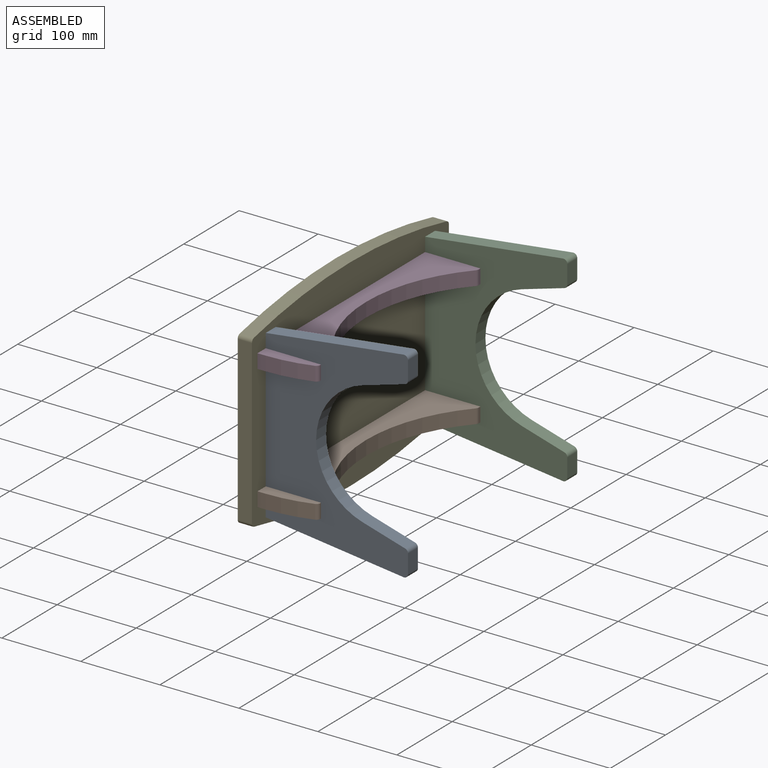
[diagram: assembled view]
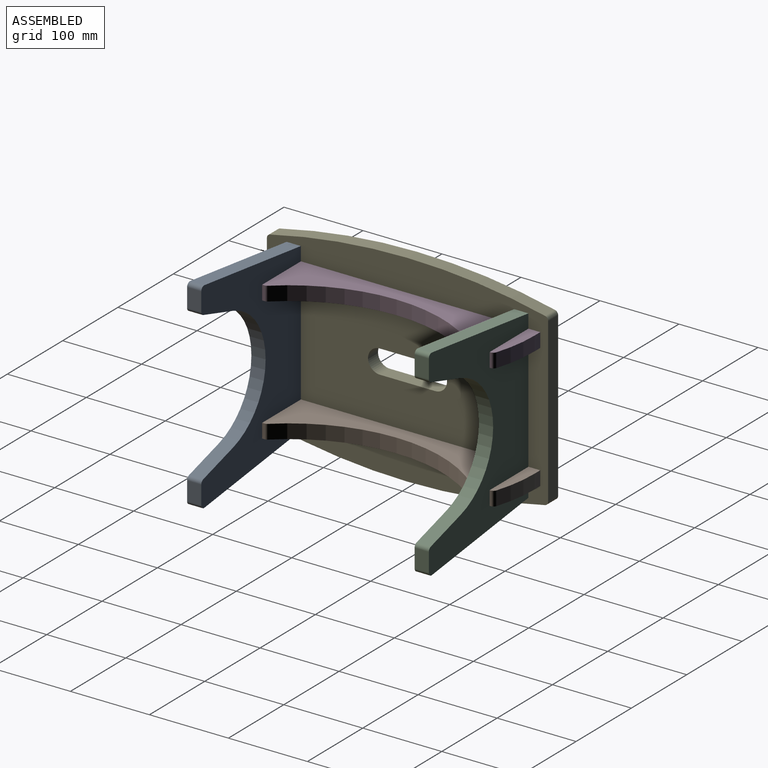
[diagram: assembled view, second angle]
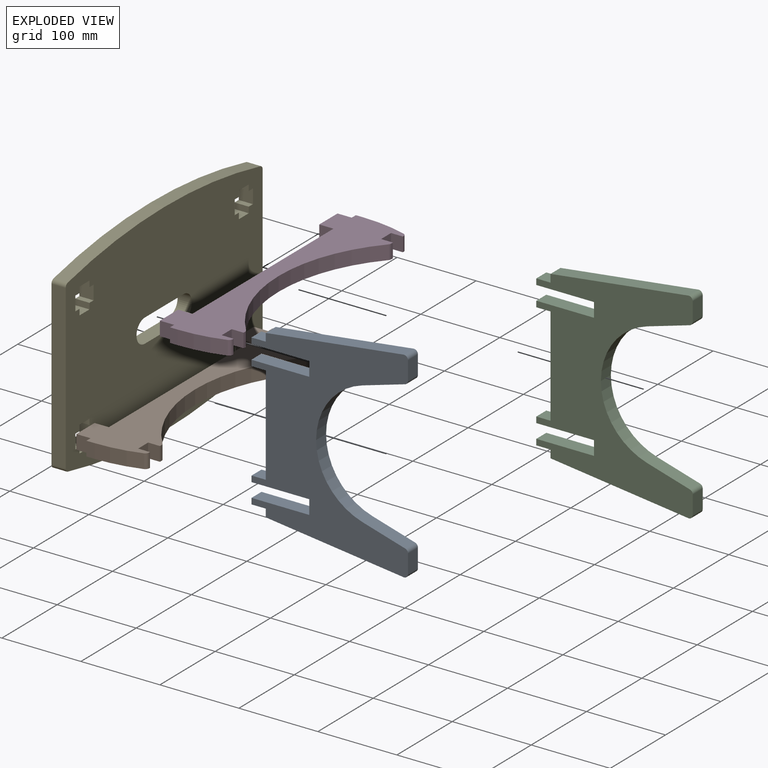
[diagram: exploded view]
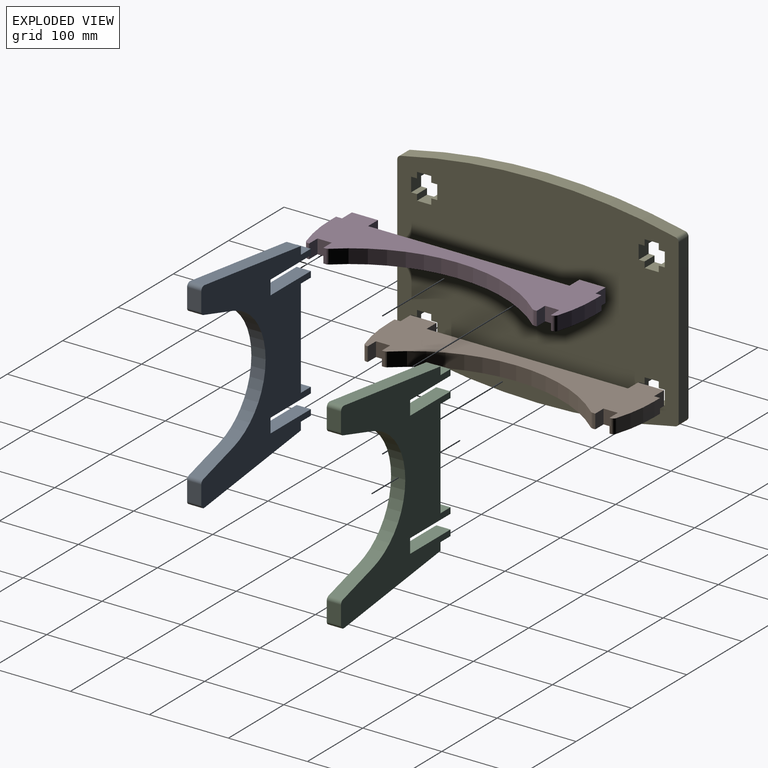
[diagram: exploded view, second angle]
ASSEMBLY  parts=5 mates=4
PART A: 30 faces, bbox 198x18x254.7 mm
  f0: plane 73x18mm, normal (0,0,-1), area 1314mm2, adj f1,f27,f28,f29
  f1: plane 18x7.5mm, normal (1,0,0), area 135mm2, adj f0,f2,f28,f29
  f2: plane 18x18mm, normal (0,0,1), area 324mm2, adj f1,f3,f28,f29
  f3: plane 18x10mm, normal (1,0,0), area 180mm2, adj f2,f4,f28,f29
  f4: plane 174.38x21.8mm, normal (0.12,0,0.99), area 3163.3mm2, adj f3,f5,f28,f29
  f5: cylinder r=5mm len=18mm, axis (0,1,0), area 152.6mm2, adj f4,f6,f28,f29
  f6: plane 23.59x18mm, normal (-1,0,0), area 424.5mm2, adj f5,f7,f28,f29
  f7: cylinder r=5mm len=18mm, axis (0,1,0), area 115.8mm2, adj f6,f8,f28,f29
  f8: plane 54x18mm, normal (-0.28,0,-0.96), area 1012.5mm2, adj f7,f9,f28,f29
  f9: cylinder r=81.46mm len=156.4mm, axis (0,1,0), area 3774.1mm2, adj f8,f10,f28,f29
  f10: plane 54x18mm, normal (-0.28,0,0.96), area 1012.5mm2, adj f9,f11,f28,f29
  f11: cylinder r=5mm len=18mm, axis (0,1,0), area 115.8mm2, adj f10,f12,f28,f29
  f12: plane 23.59x18mm, normal (-1,0,0), area 424.5mm2, adj f11,f13,f28,f29
  f13: cylinder r=5mm len=18mm, axis (0,1,0), area 152.6mm2, adj f12,f14,f28,f29
  f14: plane 174.38x21.8mm, normal (0.12,0,-0.99), area 3163.3mm2, adj f13,f15,f28,f29
  f15: plane 18x10mm, normal (1,0,0), area 180mm2, adj f14,f16,f28,f29
  f16: plane 18x18mm, normal (0,0,-1), area 324mm2, adj f15,f17,f28,f29
  f17: plane 18x7.5mm, normal (1,0,0), area 135mm2, adj f16,f18,f28,f29
  f18: plane 73x18mm, normal (0,0,1), area 1314mm2, adj f17,f19,f28,f29
  f19: plane 18x18mm, normal (1,0,0), area 324mm2, adj f18,f20,f28,f29
  f20: plane 73x18mm, normal (0,0,-1), area 1314mm2, adj f19,f21,f28,f29
  f21: plane 18x7.5mm, normal (1,0,0), area 135mm2, adj f20,f22,f28,f29
  f22: plane 18x18mm, normal (0,0,1), area 324mm2, adj f21,f23,f28,f29
  f23: plane 125x18mm, normal (1,0,0), area 2250mm2, adj f22,f24,f28,f29
  f24: plane 18x18mm, normal (0,0,-1), area 324mm2, adj f23,f25,f28,f29
  f25: plane 18x7.5mm, normal (1,0,0), area 135mm2, adj f24,f26,f28,f29
  f26: plane 73x18mm, normal (0,0,1), area 1314mm2, adj f25,f27,f28,f29
  f27: plane 18x18mm, normal (1,0,0), area 324mm2, adj f0,f26,f28,f29
  f28: plane 254.67x198mm, normal (0,-1,0), area 23837.8mm2, adj f0,f1,f2,f3,f4,f5,f6,f7
  f29: plane 254.67x198mm, normal (0,1,0), area 23837.8mm2, adj f0,f1,f2,f3,f4,f5,f6,f7
PART B: 30 faces, bbox 336x18x88 mm
  f0: plane 33x18mm, normal (0,0,-1), area 594mm2, adj f1,f27,f28,f29
  f1: plane 18x18mm, normal (1,0,0), area 324mm2, adj f0,f2,f28,f29
  f2: plane 255x18mm, normal (0,0,-1), area 4590mm2, adj f1,f3,f28,f29
  f3: plane 18x18mm, normal (-1,0,0), area 324mm2, adj f2,f4,f28,f29
  f4: plane 33x18mm, normal (0,0,-1), area 594mm2, adj f3,f5,f28,f29
  f5: plane 18x18mm, normal (1,0,0), area 324mm2, adj f4,f6,f28,f29
  f6: plane 18x7.5mm, normal (0,0,-1), area 135mm2, adj f5,f7,f28,f29
  f7: plane 18x10mm, normal (1,0,0), area 180mm2, adj f6,f8,f28,f29
  f8: cylinder r=185mm len=56.53mm, axis (0,1,0), area 1034mm2, adj f7,f9,f28,f29
  f9: cylinder r=5mm len=18mm, axis (0,1,0), area 113.4mm2, adj f8,f10,f28,f29
  f10: plane 18x1.39mm, normal (0,0,1), area 25mm2, adj f9,f11,f28,f29
  f11: plane 18x15mm, normal (-1,0,0), area 270mm2, adj f10,f12,f28,f29
  f12: plane 18x18mm, normal (0,0,1), area 324mm2, adj f11,f13,f28,f29
  f13: plane 18x15mm, normal (1,0,0), area 270mm2, adj f12,f14,f28,f29
  f14: plane 18x3.09mm, normal (0,0,1), area 55.6mm2, adj f13,f15,f28,f29
  f15: cylinder r=5mm len=18mm, axis (0,1,0), area 65.2mm2, adj f14,f16,f28,f29
  f16: cylinder r=194mm len=257.19mm, axis (0,1,0), area 5060.8mm2, adj f15,f17,f28,f29
  f17: cylinder r=5mm len=18mm, axis (0,1,0), area 65.2mm2, adj f16,f18,f28,f29
  f18: plane 18x3.09mm, normal (0,0,1), area 55.6mm2, adj f17,f19,f28,f29
  f19: plane 18x15mm, normal (-1,0,0), area 270mm2, adj f18,f20,f28,f29
  f20: plane 18x18mm, normal (0,0,1), area 324mm2, adj f19,f21,f28,f29
  f21: plane 18x15mm, normal (1,0,0), area 270mm2, adj f20,f22,f28,f29
  f22: plane 18x1.39mm, normal (0,0,1), area 25mm2, adj f21,f23,f28,f29
  f23: cylinder r=5mm len=18mm, axis (0,1,0), area 113.4mm2, adj f22,f24,f28,f29
  f24: cylinder r=185mm len=56.53mm, axis (0,1,0), area 1034mm2, adj f23,f25,f28,f29
  f25: plane 18x10mm, normal (-1,0,0), area 180mm2, adj f24,f26,f28,f29
  f26: plane 18x7.5mm, normal (0,0,-1), area 135mm2, adj f25,f27,f28,f29
  f27: plane 18x18mm, normal (-1,0,0), area 324mm2, adj f0,f26,f28,f29
  f28: plane 336x88mm, normal (0,-1,0), area 14848.8mm2, adj f0,f1,f2,f3,f4,f5,f6,f7
  f29: plane 336x88mm, normal (0,1,0), area 14848.8mm2, adj f0,f1,f2,f3,f4,f5,f6,f7
PART C: 30 faces, bbox 198x18x254.7 mm
  f0: plane 18x7.5mm, normal (-1,0,0), area 135mm2, adj f1,f27,f28,f29
  f1: plane 73x18mm, normal (0,0,-1), area 1314mm2, adj f0,f2,f28,f29
  f2: plane 18x18mm, normal (-1,0,0), area 324mm2, adj f1,f3,f28,f29
  f3: plane 73x18mm, normal (0,0,1), area 1314mm2, adj f2,f4,f28,f29
  f4: plane 18x7.5mm, normal (-1,0,0), area 135mm2, adj f3,f5,f28,f29
  f5: plane 18x18mm, normal (0,0,-1), area 324mm2, adj f4,f6,f28,f29
  f6: plane 125x18mm, normal (-1,0,0), area 2250mm2, adj f5,f7,f28,f29
  f7: plane 18x18mm, normal (0,0,1), area 324mm2, adj f6,f8,f28,f29
  f8: plane 18x7.5mm, normal (-1,0,0), area 135mm2, adj f7,f9,f28,f29
  f9: plane 73x18mm, normal (0,0,-1), area 1314mm2, adj f8,f10,f28,f29
  f10: plane 18x18mm, normal (-1,0,0), area 324mm2, adj f9,f11,f28,f29
  f11: plane 73x18mm, normal (0,0,1), area 1314mm2, adj f10,f12,f28,f29
  f12: plane 18x7.5mm, normal (-1,0,0), area 135mm2, adj f11,f13,f28,f29
  f13: plane 18x18mm, normal (0,0,-1), area 324mm2, adj f12,f14,f28,f29
  f14: plane 18x10mm, normal (-1,0,0), area 180mm2, adj f13,f15,f28,f29
  f15: plane 174.38x21.8mm, normal (-0.12,0,-0.99), area 3163.3mm2, adj f14,f16,f28,f29
  f16: cylinder r=5mm len=18mm, axis (0,1,0), area 152.6mm2, adj f15,f17,f28,f29
  f17: plane 23.59x18mm, normal (1,0,0), area 424.5mm2, adj f16,f18,f28,f29
  f18: cylinder r=5mm len=18mm, axis (0,1,0), area 115.8mm2, adj f17,f19,f28,f29
  f19: plane 54x18mm, normal (0.28,0,0.96), area 1012.5mm2, adj f18,f20,f28,f29
  f20: cylinder r=81.46mm len=156.4mm, axis (0,1,0), area 3774.1mm2, adj f19,f21,f28,f29
  f21: plane 54x18mm, normal (0.28,0,-0.96), area 1012.5mm2, adj f20,f22,f28,f29
  f22: cylinder r=5mm len=18mm, axis (0,1,0), area 115.8mm2, adj f21,f23,f28,f29
  f23: plane 23.59x18mm, normal (1,0,0), area 424.5mm2, adj f22,f24,f28,f29
  f24: cylinder r=5mm len=18mm, axis (0,1,0), area 152.6mm2, adj f23,f25,f28,f29
  f25: plane 174.38x21.8mm, normal (-0.12,0,0.99), area 3163.3mm2, adj f24,f26,f28,f29
  f26: plane 18x10mm, normal (-1,0,0), area 180mm2, adj f25,f27,f28,f29
  f27: plane 18x18mm, normal (0,0,1), area 324mm2, adj f0,f26,f28,f29
  f28: plane 254.67x198mm, normal (0,-1,0), area 23837.8mm2, adj f0,f1,f2,f3,f4,f5,f6,f7
  f29: plane 254.67x198mm, normal (0,1,0), area 23837.8mm2, adj f0,f1,f2,f3,f4,f5,f6,f7
PART D: 30 faces, bbox 336x18x88 mm
  f0: plane 33x18mm, normal (0,0,-1), area 594mm2, adj f1,f27,f28,f29
  f1: plane 18x18mm, normal (1,0,0), area 324mm2, adj f0,f2,f28,f29
  f2: plane 255x18mm, normal (0,0,-1), area 4590mm2, adj f1,f3,f28,f29
  f3: plane 18x18mm, normal (-1,0,0), area 324mm2, adj f2,f4,f28,f29
  f4: plane 33x18mm, normal (0,0,-1), area 594mm2, adj f3,f5,f28,f29
  f5: plane 18x18mm, normal (1,0,0), area 324mm2, adj f4,f6,f28,f29
  f6: plane 18x7.5mm, normal (0,0,-1), area 135mm2, adj f5,f7,f28,f29
  f7: plane 18x10mm, normal (1,0,0), area 180mm2, adj f6,f8,f28,f29
  f8: cylinder r=185mm len=56.53mm, axis (0,1,0), area 1034mm2, adj f7,f9,f28,f29
  f9: cylinder r=5mm len=18mm, axis (0,1,0), area 113.4mm2, adj f8,f10,f28,f29
  f10: plane 18x1.39mm, normal (0,0,1), area 25mm2, adj f9,f11,f28,f29
  f11: plane 18x15mm, normal (-1,0,0), area 270mm2, adj f10,f12,f28,f29
  f12: plane 18x18mm, normal (0,0,1), area 324mm2, adj f11,f13,f28,f29
  f13: plane 18x15mm, normal (1,0,0), area 270mm2, adj f12,f14,f28,f29
  f14: plane 18x3.09mm, normal (0,0,1), area 55.6mm2, adj f13,f15,f28,f29
  f15: cylinder r=5mm len=18mm, axis (0,1,0), area 65.2mm2, adj f14,f16,f28,f29
  f16: cylinder r=194mm len=257.19mm, axis (0,1,0), area 5060.8mm2, adj f15,f17,f28,f29
  f17: cylinder r=5mm len=18mm, axis (0,1,0), area 65.2mm2, adj f16,f18,f28,f29
  f18: plane 18x3.09mm, normal (0,0,1), area 55.6mm2, adj f17,f19,f28,f29
  f19: plane 18x15mm, normal (-1,0,0), area 270mm2, adj f18,f20,f28,f29
  f20: plane 18x18mm, normal (0,0,1), area 324mm2, adj f19,f21,f28,f29
  f21: plane 18x15mm, normal (1,0,0), area 270mm2, adj f20,f22,f28,f29
  f22: plane 18x1.39mm, normal (0,0,1), area 25mm2, adj f21,f23,f28,f29
  f23: cylinder r=5mm len=18mm, axis (0,1,0), area 113.4mm2, adj f22,f24,f28,f29
  f24: cylinder r=185mm len=56.53mm, axis (0,1,0), area 1034mm2, adj f23,f25,f28,f29
  f25: plane 18x10mm, normal (-1,0,0), area 180mm2, adj f24,f26,f28,f29
  f26: plane 18x7.5mm, normal (0,0,-1), area 135mm2, adj f25,f27,f28,f29
  f27: plane 18x18mm, normal (-1,0,0), area 324mm2, adj f0,f26,f28,f29
  f28: plane 336x88mm, normal (0,-1,0), area 14848.8mm2, adj f0,f1,f2,f3,f4,f5,f6,f7
  f29: plane 336x88mm, normal (0,1,0), area 14848.8mm2, adj f0,f1,f2,f3,f4,f5,f6,f7
PART E: 62 faces, bbox 356x18x256 mm
  f0: cylinder r=5mm len=18mm, axis (0,1,0), area 121mm2, adj f1,f59,f60,f61
  f1: plane 206.66x18mm, normal (-1,0,0), area 3719.9mm2, adj f0,f2,f60,f61
  f2: cylinder r=5mm len=18mm, axis (0,1,0), area 121mm2, adj f1,f3,f60,f61
  f3: cylinder r=775.62mm len=348.25mm, axis (0,1,0), area 6322.3mm2, adj f2,f4,f60,f61
  f4: cylinder r=5mm len=18mm, axis (0,1,0), area 121mm2, adj f3,f5,f60,f61
  f5: plane 206.66x18mm, normal (1,0,0), area 3719.9mm2, adj f4,f6,f60,f61
  f6: cylinder r=5mm len=18mm, axis (0,1,0), area 121mm2, adj f5,f59,f60,f61
  f7: plane 70x18mm, normal (0,0,-1), area 1260mm2, adj f8,f54,f60,f61
  f8: cylinder r=15mm len=30mm, axis (0,1,0), area 848.2mm2, adj f7,f9,f60,f61
  f9: plane 70x18mm, normal (0,0,1), area 1260mm2, adj f8,f54,f60,f61
  f10: plane 18x7.5mm, normal (0,0,1), area 135mm2, adj f11,f55,f60,f61
  f11: plane 18x7.5mm, normal (-1,0,0), area 135mm2, adj f10,f12,f60,f61
  f12: plane 18x18mm, normal (0,0,1), area 324mm2, adj f11,f13,f60,f61
  f13: plane 18x7.5mm, normal (1,0,0), area 135mm2, adj f12,f14,f60,f61
  f14: plane 18x7.5mm, normal (0,0,1), area 135mm2, adj f13,f15,f60,f61
  f15: plane 18x18mm, normal (1,0,0), area 324mm2, adj f14,f16,f60,f61
  f16: plane 18x7.5mm, normal (0,0,-1), area 135mm2, adj f15,f17,f60,f61
  f17: plane 18x7.5mm, normal (1,0,0), area 135mm2, adj f16,f18,f60,f61
  f18: plane 18x18mm, normal (0,0,-1), area 324mm2, adj f17,f19,f60,f61
  f19: plane 18x7.5mm, normal (-1,0,0), area 135mm2, adj f18,f20,f60,f61
  f20: plane 18x7.5mm, normal (0,0,-1), area 135mm2, adj f19,f55,f60,f61
  f21: plane 18x7.5mm, normal (0,0,1), area 135mm2, adj f22,f56,f60,f61
  f22: plane 18x7.5mm, normal (-1,0,0), area 135mm2, adj f21,f23,f60,f61
  f23: plane 18x18mm, normal (0,0,1), area 324mm2, adj f22,f24,f60,f61
  f24: plane 18x7.5mm, normal (1,0,0), area 135mm2, adj f23,f25,f60,f61
  f25: plane 18x7.5mm, normal (0,0,1), area 135mm2, adj f24,f26,f60,f61
  f26: plane 18x18mm, normal (1,0,0), area 324mm2, adj f25,f27,f60,f61
  f27: plane 18x7.5mm, normal (0,0,-1), area 135mm2, adj f26,f28,f60,f61
  f28: plane 18x7.5mm, normal (1,0,0), area 135mm2, adj f27,f29,f60,f61
  f29: plane 18x18mm, normal (0,0,-1), area 324mm2, adj f28,f30,f60,f61
  f30: plane 18x7.5mm, normal (-1,0,0), area 135mm2, adj f29,f31,f60,f61
  f31: plane 18x7.5mm, normal (0,0,-1), area 135mm2, adj f30,f56,f60,f61
  f32: plane 18x7.5mm, normal (0,0,1), area 135mm2, adj f33,f57,f60,f61
  f33: plane 18x7.5mm, normal (-1,0,0), area 135mm2, adj f32,f34,f60,f61
  f34: plane 18x18mm, normal (0,0,1), area 324mm2, adj f33,f35,f60,f61
  f35: plane 18x7.5mm, normal (1,0,0), area 135mm2, adj f34,f36,f60,f61
  f36: plane 18x7.5mm, normal (0,0,1), area 135mm2, adj f35,f37,f60,f61
  f37: plane 18x18mm, normal (1,0,0), area 324mm2, adj f36,f38,f60,f61
  f38: plane 18x7.5mm, normal (0,0,-1), area 135mm2, adj f37,f39,f60,f61
  f39: plane 18x7.5mm, normal (1,0,0), area 135mm2, adj f38,f40,f60,f61
  f40: plane 18x18mm, normal (0,0,-1), area 324mm2, adj f39,f41,f60,f61
  f41: plane 18x7.5mm, normal (-1,0,0), area 135mm2, adj f40,f42,f60,f61
  f42: plane 18x7.5mm, normal (0,0,-1), area 135mm2, adj f41,f57,f60,f61
  f43: plane 18x7.5mm, normal (0,0,1), area 135mm2, adj f44,f58,f60,f61
  f44: plane 18x7.5mm, normal (-1,0,0), area 135mm2, adj f43,f45,f60,f61
  f45: plane 18x18mm, normal (0,0,1), area 324mm2, adj f44,f46,f60,f61
  f46: plane 18x7.5mm, normal (1,0,0), area 135mm2, adj f45,f47,f60,f61
  f47: plane 18x7.5mm, normal (0,0,1), area 135mm2, adj f46,f48,f60,f61
  f48: plane 18x18mm, normal (1,0,0), area 324mm2, adj f47,f49,f60,f61
  f49: plane 18x7.5mm, normal (0,0,-1), area 135mm2, adj f48,f50,f60,f61
  f50: plane 18x7.5mm, normal (1,0,0), area 135mm2, adj f49,f51,f60,f61
  f51: plane 18x18mm, normal (0,0,-1), area 324mm2, adj f50,f52,f60,f61
  f52: plane 18x7.5mm, normal (-1,0,0), area 135mm2, adj f51,f53,f60,f61
  f53: plane 18x7.5mm, normal (0,0,-1), area 135mm2, adj f52,f58,f60,f61
  f54: cylinder r=15mm len=30mm, axis (0,1,0), area 848.2mm2, adj f7,f9,f60,f61
  f55: plane 18x18mm, normal (-1,0,0), area 324mm2, adj f10,f20,f60,f61
  f56: plane 18x18mm, normal (-1,0,0), area 324mm2, adj f21,f31,f60,f61
  f57: plane 18x18mm, normal (-1,0,0), area 324mm2, adj f32,f42,f60,f61
  f58: plane 18x18mm, normal (-1,0,0), area 324mm2, adj f43,f53,f60,f61
  f59: cylinder r=775.62mm len=348.25mm, axis (0,1,0), area 6322.3mm2, adj f0,f6,f60,f61
  f60: plane 356x256mm, normal (0,-1,0), area 79974.3mm2, adj f0,f1,f2,f3,f4,f5,f6,f7
  f61: plane 356x256mm, normal (0,1,0), area 79974.3mm2, adj f0,f1,f2,f3,f4,f5,f6,f7
PLACE A rot(axis=(0,0,1),180deg) t=(259.51,-352.75,-11.94)mm
PLACE B rot(axis=(-0.58,0.58,-0.58),120deg) t=(34.29,-22.37,-44.01)mm
PLACE C t=(-106.49,-46.75,-11.94)mm
PLACE D rot(axis=(-0.58,0.58,-0.58),120deg) t=(34.29,-408.37,113.99)mm
PLACE E rot(axis=(0,0,1),90deg) t=(-127.11,8.87,-10.06)mm
MATE fastened D.f12 <-> A.f27  axis (1,0,0) through (-54.11,-352.75,122.99)mm
MATE fastened A.f15 <-> E.f60  axis (-1,0,0) through (-109.11,-343.75,-51.51)mm
MATE fastened E.f60 <-> C.f26  axis (1,0,0) through (-109.11,-55.75,139.49)mm
MATE fastened B.f12 <-> A.f19  axis (1,0,0) through (-54.11,-343.75,-44.01)mm
